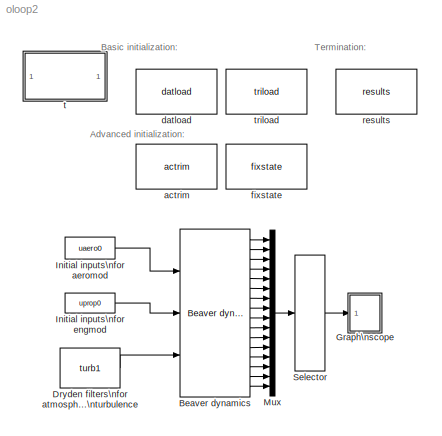
MODEL oloop2
KIND model
BLOCK [Reference] Beaver dynamics  REF=fdclib10/Beaver dynamics\n for open-loop models
  Ports = [3, 16]
  SID = 1
  SourceBlock = fdclib10/Beaver dynamics\n for open-loop models
  SourceType = SubSystem
BLOCK [Reference] Dryden filters\nfor atmospheric\nturbulence  REF=wndlib2/turb1
  Ports = [0, 1]
  SID = 2
  SourceBlock = wndlib2/turb1
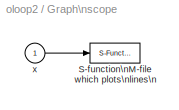
BLOCK [SubSystem] Graph\nscope
  Ports = [1]
  RequestExecContextInheritance = off
  SID = 3
  ShowPortLabels = none
BLOCK [S-Function] Graph\nscope/S-function\nM-file which plots\nlines\n
  CopyFcn = sfunyst([],[],[],'CopyBlock')
  DeleteFcn = sfunyst([],[],[],'DeleteBlock')
  EnableBusSupport = off
  FunctionName = sfunyst
  LoadFcn = sfunyst([],[],[],'LoadBlock')
  Parameters = ax, color, npts
  Ports = [1]
  SFcnIsStateOwnerBlock = off
  SFunctionDeploymentMode = off
  SID = 5
BLOCK [Inport] Graph\nscope/x
  IconDisplay = Port number
  SID = 4
BLOCK [Constant] Initial inputs\nfor aeromod
  SID = 6
  Value = uaero0
BLOCK [Constant] Initial inputs\nfor engmod
  SID = 7
  Value = uprop0
BLOCK [Mux] Mux
  DisplayOption = bar
  Inputs = 16
  Ports = [16, 1]
  SID = 8
BLOCK [Selector] Selector
  IndexOptions = Index vector (dialog)
  Indices = 8
  InputPortWidth = 16
  OutputSizes = 1
  Ports = [1, 1]
  SID = 9
BLOCK [Reference] actrim  REF=fbuttons/actrim
  Ports = []
  SID = 10
  SourceBlock = fbuttons/actrim
  SourceType = actrim
BLOCK [Reference] datload  REF=fbuttons/datload
  Ports = []
  SID = 11
  SourceBlock = fbuttons/datload
  SourceType = datload
BLOCK [Reference] fixstate  REF=fbuttons/fixstate
  Ports = []
  SID = 12
  SourceBlock = fbuttons/fixstate
  SourceType = fixstate
BLOCK [Reference] results  REF=fbuttons/results
  Ports = []
  SID = 13
  SourceBlock = fbuttons/results
  SourceType = results
BLOCK [SubSystem] t
  OpenFcn = browse oloop
  Ports = []
  RequestExecContextInheritance = off
  SID = 14
  ShowPortLabels = none
BLOCK [Reference] triload  REF=fbuttons/triload
  Ports = []
  SID = 15
  SourceBlock = fbuttons/triload
  SourceType = triload
ANNOTATION (root): Advanced initialization:
ANNOTATION (root): Basic initialization:
ANNOTATION (root): Termination:
LINE Beaver dynamics:1 -> Mux:1
LINE Beaver dynamics:10 -> Mux:10
LINE Beaver dynamics:11 -> Mux:11
LINE Beaver dynamics:12 -> Mux:12
LINE Beaver dynamics:13 -> Mux:13
LINE Beaver dynamics:14 -> Mux:14
LINE Beaver dynamics:15 -> Mux:15
LINE Beaver dynamics:16 -> Mux:16
LINE Beaver dynamics:2 -> Mux:2
LINE Beaver dynamics:3 -> Mux:3
LINE Beaver dynamics:4 -> Mux:4
LINE Beaver dynamics:5 -> Mux:5
LINE Beaver dynamics:6 -> Mux:6
LINE Beaver dynamics:7 -> Mux:7
LINE Beaver dynamics:8 -> Mux:8
LINE Beaver dynamics:9 -> Mux:9
LINE Dryden filters\nfor atmospheric\nturbulence:1 -> Beaver dynamics:3
LINE Graph\nscope/x:1 -> Graph\nscope/S-function\nM-file which plots\nlines\n:1
LINE Initial inputs\nfor aeromod:1 -> Beaver dynamics:1
LINE Initial inputs\nfor engmod:1 -> Beaver dynamics:2
LINE Mux:1 -> Selector:1
LINE Selector:1 -> Graph\nscope:1
